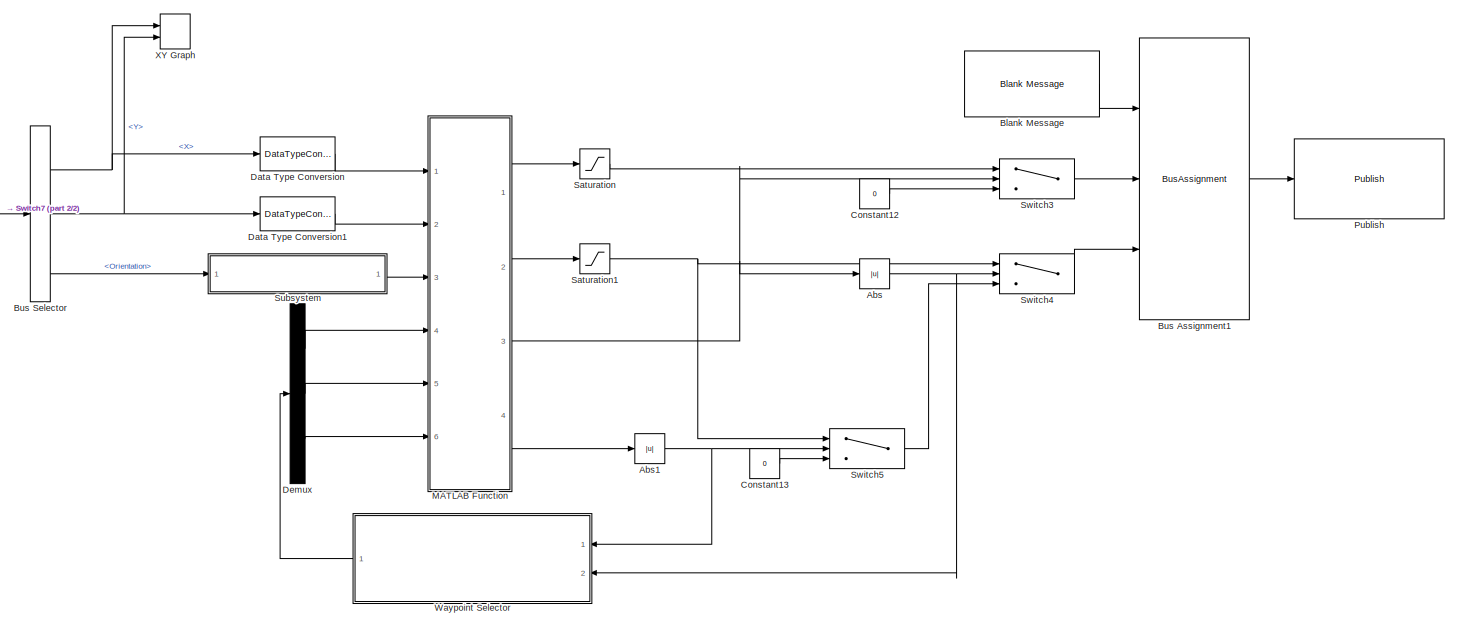
[diagram: root canvas - part 1/2, most of the canvas]
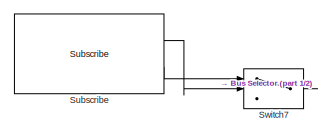
[diagram: root canvas - part 2/2, top left region]
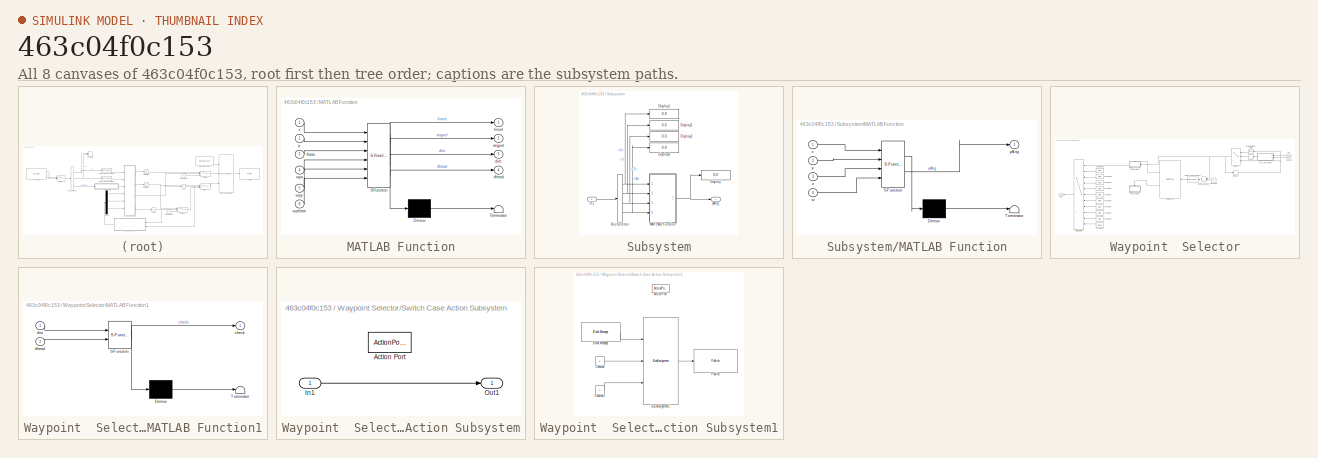
[diagram: thumbnail index - all 8 canvases of the model, root first then tree order]
MODEL slx_463c04f0c153
KIND model
CONFIG AbsTol = auto
CONFIG EnableMultiTasking = off
CONFIG FixedStep = 0.1
CONFIG MaxStep = auto
CONFIG MinStep = auto
CONFIG RelTol = 1e-3
CONFIG SampleTimeConstraint = Unconstrained
CONFIG SolverName = FixedStepAuto
CONFIG StartTime = 0.0
CONFIG StopTime = inf
BLOCK [Abs] Abs
  SaturateOnIntegerOverflow = off
BLOCK [Abs] Abs1
  SaturateOnIntegerOverflow = off
BLOCK [Reference] Blank Message  REF=robotlib/Blank Message
  Ports = [0, 1]
  SourceBlock = robotlib/Blank Message
  SourceProductBaseCode = RR
  SourceType = ROS Blank Message
BLOCK [BusAssignment] Bus Assignment1
  AssignedSignals = Linear.X,Angular.Z
  Ports = [3, 1]
BLOCK [BusSelector] Bus Selector
  OutputSignals = Pose.Pose.Position.X,Pose.Pose.Position.Y,Pose.Pose.Orientation
  Ports = [1, 3]
BLOCK [Constant] Constant12
  Value = 0
BLOCK [Constant] Constant13
  Value = 0
BLOCK [DataTypeConversion] Data Type Conversion
  OutDataTypeStr = double
  RndMeth = Floor
  SaturateOnIntegerOverflow = off
BLOCK [DataTypeConversion] Data Type Conversion1
  OutDataTypeStr = double
  RndMeth = Floor
  SaturateOnIntegerOverflow = off
BLOCK [Demux] Demux
  Outputs = 3
  Ports = [1, 3]
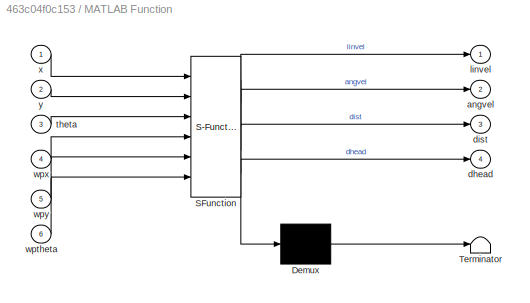
BLOCK [SubSystem] MATLAB Function
  ErrorFcn = Stateflow.Translate.translate
  PermitHierarchicalResolution = ExplicitOnly
  Ports = [6, 4]
  RequestExecContextInheritance = off
  SFBlockType = MATLAB Function
  TreatAsAtomicUnit = on
BLOCK [Demux] MATLAB Function/ Demux 
  Outputs = 1
  Ports = [1, 1]
BLOCK [S-Function] MATLAB Function/ SFunction 
  EnableBusSupport = on
  FunctionName = sf_sfun
  PortCounts = [6 5]
  Ports = [6, 5]
  SFcnIsStateOwnerBlock = off
  SFunctionDeploymentMode = off
  Tag = Stateflow S-Function 2
BLOCK [Terminator] MATLAB Function/ Terminator 
BLOCK [Outport] MATLAB Function/angvel
  Port = 2
BLOCK [Outport] MATLAB Function/dhead
  Port = 4
BLOCK [Outport] MATLAB Function/dist
  Port = 3
BLOCK [Outport] MATLAB Function/linvel
BLOCK [Inport] MATLAB Function/theta
  Port = 3
BLOCK [Inport] MATLAB Function/wptheta
  Port = 6
BLOCK [Inport] MATLAB Function/wpx
  Port = 4
BLOCK [Inport] MATLAB Function/wpy
  Port = 5
BLOCK [Inport] MATLAB Function/x
BLOCK [Inport] MATLAB Function/y
  Port = 2
BLOCK [Reference] Publish  REF=robotlib/Publish
  Ports = [1]
  SourceBlock = robotlib/Publish
  SourceProductBaseCode = RR
  SourceType = ROS Publish
BLOCK [Saturate] Saturation
  LowerLimit = -0.2
  UpperLimit = 0.2
BLOCK [Saturate] Saturation1
  LowerLimit = -0.4
  UpperLimit = 0.4
BLOCK [Reference] Subscribe  REF=robotlib/Subscribe
  Ports = [0, 2]
  SourceBlock = robotlib/Subscribe
  SourceProductBaseCode = RR
  SourceType = ROS Subscribe
BLOCK [SubSystem] Subsystem
  Ports = [1, 1]
  RequestExecContextInheritance = off
BLOCK [BusSelector] Subsystem/Bus Selector
  OutputSignals = X,Y,Z,W
  Ports = [1, 4]
BLOCK [Display] Subsystem/Display
  Decimation = 1
  Ports = [1]
BLOCK [Display] Subsystem/Display1
  Decimation = 1
  Ports = [1]
BLOCK [Display] Subsystem/Display2
  Decimation = 1
  Ports = [1]
BLOCK [Display] Subsystem/Display3
  Decimation = 1
  Ports = [1]
BLOCK [Display] Subsystem/Display4
  Decimation = 1
  Ports = [1]
BLOCK [Inport] Subsystem/In1
BLOCK [SubSystem] Subsystem/MATLAB Function
  ErrorFcn = Stateflow.Translate.translate
  PermitHierarchicalResolution = ExplicitOnly
  Ports = [4, 1]
  RequestExecContextInheritance = off
  SFBlockType = MATLAB Function
  TreatAsAtomicUnit = on
BLOCK [Demux] Subsystem/MATLAB Function/ Demux 
  Outputs = 1
  Ports = [1, 1]
BLOCK [S-Function] Subsystem/MATLAB Function/ SFunction 
  EnableBusSupport = on
  FunctionName = sf_sfun
  PortCounts = [4 2]
  Ports = [4, 2]
  SFcnIsStateOwnerBlock = off
  SFunctionDeploymentMode = off
  Tag = Stateflow S-Function 1
BLOCK [Terminator] Subsystem/MATLAB Function/ Terminator 
BLOCK [Inport] Subsystem/MATLAB Function/w
  Port = 4
BLOCK [Inport] Subsystem/MATLAB Function/x
BLOCK [Inport] Subsystem/MATLAB Function/y
  Port = 2
BLOCK [Outport] Subsystem/MATLAB Function/yAng
BLOCK [Inport] Subsystem/MATLAB Function/z
  Port = 3
BLOCK [Outport] Subsystem/yAng
BLOCK [Switch] Switch3
  Criteria = u2 > Threshold
  InputSameDT = off
  SaturateOnIntegerOverflow = off
  Threshold = 0.05
BLOCK [Switch] Switch4
  Criteria = u2 > Threshold
  InputSameDT = off
  SaturateOnIntegerOverflow = off
  Threshold = 0.05
BLOCK [Switch] Switch5
  Criteria = u2 > Threshold
  InputSameDT = off
  SaturateOnIntegerOverflow = off
  Threshold = 0.05
BLOCK [Switch] Switch7
  Criteria = u2 > Threshold
  InputSameDT = off
  SaturateOnIntegerOverflow = off
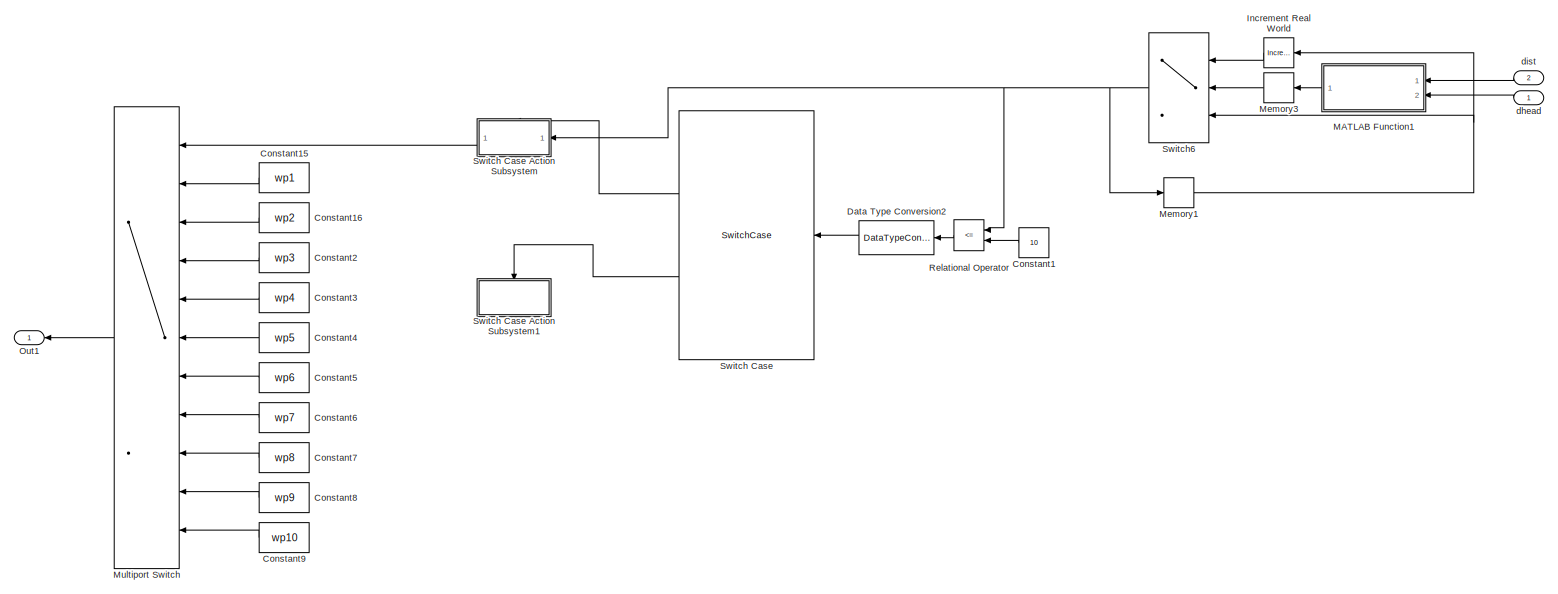
[diagram: Waypoint  Selector - part 1/1, most of the canvas]
BLOCK [SubSystem] Waypoint  Selector
  Ports = [2, 1]
  RequestExecContextInheritance = off
BLOCK [Constant] Waypoint  Selector/Constant1
  Value = 10
BLOCK [Constant] Waypoint  Selector/Constant15
  Value = wp1
BLOCK [Constant] Waypoint  Selector/Constant16
  Value = wp2
BLOCK [Constant] Waypoint  Selector/Constant2
  Value = wp3
BLOCK [Constant] Waypoint  Selector/Constant3
  Value = wp4
BLOCK [Constant] Waypoint  Selector/Constant4
  Value = wp5
BLOCK [Constant] Waypoint  Selector/Constant5
  Value = wp6
BLOCK [Constant] Waypoint  Selector/Constant6
  Value = wp7
BLOCK [Constant] Waypoint  Selector/Constant7
  Value = wp8
BLOCK [Constant] Waypoint  Selector/Constant8
  Value = wp9
BLOCK [Constant] Waypoint  Selector/Constant9
  Value = wp10
BLOCK [DataTypeConversion] Waypoint  Selector/Data Type Conversion2
  OutDataTypeStr = double
  RndMeth = Floor
  SaturateOnIntegerOverflow = off
BLOCK [Reference] Waypoint  Selector/Increment Real World  REF=simulink/Additional Math
& Discrete/Additional Math:
Increment - Decrement/Increment
Real World
  Ports = [1, 1]
  SourceBlock = simulink/Additional Math\n& Discrete/Additional Math:\nIncrement - Decrement/Increment\nReal World
  SourceProductBaseCode = SL
  SourceType = Real World Value Increment
BLOCK [SubSystem] Waypoint  Selector/MATLAB Function1
  ErrorFcn = Stateflow.Translate.translate
  PermitHierarchicalResolution = ExplicitOnly
  Ports = [2, 1]
  RequestExecContextInheritance = off
  SFBlockType = MATLAB Function
  TreatAsAtomicUnit = on
BLOCK [Demux] Waypoint  Selector/MATLAB Function1/ Demux 
  Outputs = 1
  Ports = [1, 1]
BLOCK [S-Function] Waypoint  Selector/MATLAB Function1/ SFunction 
  EnableBusSupport = on
  FunctionName = sf_sfun
  PortCounts = [2 2]
  Ports = [2, 2]
  SFcnIsStateOwnerBlock = off
  SFunctionDeploymentMode = off
  Tag = Stateflow S-Function 3
BLOCK [Terminator] Waypoint  Selector/MATLAB Function1/ Terminator 
BLOCK [Outport] Waypoint  Selector/MATLAB Function1/check
BLOCK [Inport] Waypoint  Selector/MATLAB Function1/dhead
  Port = 2
BLOCK [Inport] Waypoint  Selector/MATLAB Function1/dist
BLOCK [Memory] Waypoint  Selector/Memory1
  InitialCondition = 1
BLOCK [Memory] Waypoint  Selector/Memory3
BLOCK [MultiPortSwitch] Waypoint  Selector/Multiport Switch
  InputSameDT = off
  Inputs = 10
  Ports = [11, 1]
  SaturateOnIntegerOverflow = off
BLOCK [Outport] Waypoint  Selector/Out1
BLOCK [RelationalOperator] Waypoint  Selector/Relational Operator
  InputSameDT = off
  Operator = <=
  OutDataTypeStr = boolean
  Ports = [2, 1]
  RndMeth = Simplest
BLOCK [SwitchCase] Waypoint  Selector/Switch Case
  CaseConditions = {1,0}
  Ports = [1, 2]
  ShowDefaultCase = off
BLOCK [SubSystem] Waypoint  Selector/Switch Case Action Subsystem
  Ports = [1, 1, 0, 0, 0, 0, 0, 1]
  RequestExecContextInheritance = off
  TreatAsAtomicUnit = on
BLOCK [ActionPort] Waypoint  Selector/Switch Case Action Subsystem/Action Port
  ActionPortLabel = case [ 1 ]:
BLOCK [Inport] Waypoint  Selector/Switch Case Action Subsystem/In1
BLOCK [Outport] Waypoint  Selector/Switch Case Action Subsystem/Out1
BLOCK [SubSystem] Waypoint  Selector/Switch Case Action Subsystem1
  Ports = [0, 0, 0, 0, 0, 0, 0, 1]
  RequestExecContextInheritance = off
  TreatAsAtomicUnit = on
BLOCK [ActionPort] Waypoint  Selector/Switch Case Action Subsystem1/Action Port
  ActionPortLabel = case [ 0 ]:
BLOCK [Reference] Waypoint  Selector/Switch Case Action Subsystem1/Blank Message  REF=robotlib/Blank Message
  Ports = [0, 1]
  SourceBlock = robotlib/Blank Message
  SourceProductBaseCode = RR
  SourceType = ROS Blank Message
BLOCK [BusAssignment] Waypoint  Selector/Switch Case Action Subsystem1/Bus Assignment1
  AssignedSignals = Linear.X,Angular.Z
  Ports = [3, 1]
BLOCK [Constant] Waypoint  Selector/Switch Case Action Subsystem1/Constant
  Value = 0
BLOCK [Constant] Waypoint  Selector/Switch Case Action Subsystem1/Constant1
  Value = 0
BLOCK [Reference] Waypoint  Selector/Switch Case Action Subsystem1/Publish  REF=robotlib/Publish
  Ports = [1]
  SourceBlock = robotlib/Publish
  SourceProductBaseCode = RR
  SourceType = ROS Publish
BLOCK [Switch] Waypoint  Selector/Switch6
  Criteria = u2 > Threshold
  InputSameDT = off
  SaturateOnIntegerOverflow = off
BLOCK [Inport] Waypoint  Selector/dhead
BLOCK [Inport] Waypoint  Selector/dist 
  Port = 2
BLOCK [Record] XY Graph
  CompatibilityTag = XY
  FileSettingsInternal = {"entries":[{"content":{"excelSettings":{"content":{},"type":"Streamout.ExcelSettings"}},"type":"Streamout.FileSettingStorage","uuid":"65f3e3c0-3afb-4dd5-a4a8-66a70b6ab4f2"}],"packageUris":["http://schema.mathworks.com/mf0/streamout_blocks/R2020a"],"version":"1.0"}
  Layout = [1 1]
  Ports = [2]
  SignalsInternal = {"entries":[{"content":{"signals":[{"content":{"blockPath":["ass2Prov_Switchcase2021b/XY Graph"],"channel":[],"dimensions":[1],"domain":"ass2Prov_Switchcase2021b/XY Graph","lineColor":"#a2142f","plots":[1],"port":1,"sid":[],"signalID":9,"signalName":"<X>"},"type":"RecordBlkView.Signal","uuid":"1185a186-0d36-403c-a00f-c0733db3f458"},{"content":{"blockPath":["ass2Prov_Switchcase2021b/XY Graph"],"cha...<+410ch>
  VisualizationBindings = {"xyplotplugin":{"info":[{"series":[{"bindingParametersList":[{"parameter":"X-Axis","signalID":9,"signalName":"<X>"},{"parameter":"Y-Axis","signalID":12,"signalName":"<Y>"}],"seriesID":45595}],"subplotID":1}]}}
  st = -1
NET Abs1:1 -> Switch5:2, Waypoint  Selector:1
NET Abs:1 -> Switch4:2, Waypoint  Selector:2
LINE Blank Message:1 -> Bus Assignment1:1
LINE Bus Assignment1:1 -> Publish:1
NET Bus Selector:1 -> Data Type Conversion:1, XY Graph:1
NET Bus Selector:2 -> Data Type Conversion1:1, XY Graph:2
LINE Bus Selector:3 -> Subsystem:1
LINE Constant12:1 -> Switch3:3
LINE Constant13:1 -> Switch5:3
LINE Data Type Conversion1:1 -> MATLAB Function:2
LINE Data Type Conversion:1 -> MATLAB Function:1
LINE Demux:1 -> MATLAB Function:4
LINE Demux:2 -> MATLAB Function:5
LINE Demux:3 -> MATLAB Function:6
LINE MATLAB Function:1 -> Saturation:1
LINE MATLAB Function:2 -> Saturation1:1
NET MATLAB Function:3 -> Abs:1, Switch3:2
LINE MATLAB Function:4 -> Abs1:1
NET Saturation1:1 -> Switch4:1, Switch5:1
LINE Saturation:1 -> Switch3:1
LINE Subscribe:1 -> Switch7:2
LINE Subscribe:2 -> Switch7:1
NET Subsystem/Bus Selector:1 -> Subsystem/Display1:1, Subsystem/MATLAB Function:1
NET Subsystem/Bus Selector:2 -> Subsystem/Display2:1, Subsystem/MATLAB Function:2
NET Subsystem/Bus Selector:3 -> Subsystem/Display3:1, Subsystem/MATLAB Function:3
NET Subsystem/Bus Selector:4 -> Subsystem/Display4:1, Subsystem/MATLAB Function:4
LINE Subsystem/In1:1 -> Subsystem/Bus Selector:1
NET Subsystem/MATLAB Function:1 -> Subsystem/Display:1, Subsystem/yAng:1
LINE Subsystem:1 -> MATLAB Function:3
LINE Switch3:1 -> Bus Assignment1:2
LINE Switch4:1 -> Bus Assignment1:3
LINE Switch5:1 -> Switch4:3
LINE Switch7:1 -> Bus Selector:1
LINE Waypoint  Selector/Constant15:1 -> Waypoint  Selector/Multiport Switch:2
LINE Waypoint  Selector/Constant16:1 -> Waypoint  Selector/Multiport Switch:3
LINE Waypoint  Selector/Constant1:1 -> Waypoint  Selector/Relational Operator:2
LINE Waypoint  Selector/Constant2:1 -> Waypoint  Selector/Multiport Switch:4
LINE Waypoint  Selector/Constant3:1 -> Waypoint  Selector/Multiport Switch:5
LINE Waypoint  Selector/Constant4:1 -> Waypoint  Selector/Multiport Switch:6
LINE Waypoint  Selector/Constant5:1 -> Waypoint  Selector/Multiport Switch:7
LINE Waypoint  Selector/Constant6:1 -> Waypoint  Selector/Multiport Switch:8
LINE Waypoint  Selector/Constant7:1 -> Waypoint  Selector/Multiport Switch:9
LINE Waypoint  Selector/Constant8:1 -> Waypoint  Selector/Multiport Switch:10
LINE Waypoint  Selector/Constant9:1 -> Waypoint  Selector/Multiport Switch:11
LINE Waypoint  Selector/Data Type Conversion2:1 -> Waypoint  Selector/Switch Case:1
LINE Waypoint  Selector/Increment Real World:1 -> Waypoint  Selector/Switch6:1
LINE Waypoint  Selector/MATLAB Function1:1 -> Waypoint  Selector/Memory3:1
NET Waypoint  Selector/Memory1:1 -> Waypoint  Selector/Increment Real World:1, Waypoint  Selector/Switch6:3
LINE Waypoint  Selector/Memory3:1 -> Waypoint  Selector/Switch6:2
LINE Waypoint  Selector/Multiport Switch:1 -> Waypoint  Selector/Out1:1
LINE Waypoint  Selector/Relational Operator:1 -> Waypoint  Selector/Data Type Conversion2:1
LINE Waypoint  Selector/Switch Case Action Subsystem/In1:1 -> Waypoint  Selector/Switch Case Action Subsystem/Out1:1
LINE Waypoint  Selector/Switch Case Action Subsystem1/Blank Message:1 -> Waypoint  Selector/Switch Case Action Subsystem1/Bus Assignment1:1
LINE Waypoint  Selector/Switch Case Action Subsystem1/Bus Assignment1:1 -> Waypoint  Selector/Switch Case Action Subsystem1/Publish:1
LINE Waypoint  Selector/Switch Case Action Subsystem1/Constant1:1 -> Waypoint  Selector/Switch Case Action Subsystem1/Bus Assignment1:3
LINE Waypoint  Selector/Switch Case Action Subsystem1/Constant:1 -> Waypoint  Selector/Switch Case Action Subsystem1/Bus Assignment1:2
LINE Waypoint  Selector/Switch Case Action Subsystem:1 -> Waypoint  Selector/Multiport Switch:1
LINE Waypoint  Selector/Switch Case:1 -> Waypoint  Selector/Switch Case Action Subsystem:ifaction
LINE Waypoint  Selector/Switch Case:2 -> Waypoint  Selector/Switch Case Action Subsystem1:ifaction
NET Waypoint  Selector/Switch6:1 -> Waypoint  Selector/Memory1:1, Waypoint  Selector/Relational Operator:1, Waypoint  Selector/Switch Case Action Subsystem:1
LINE Waypoint  Selector/dhead:1 -> Waypoint  Selector/MATLAB Function1:2
LINE Waypoint  Selector/dist :1 -> Waypoint  Selector/MATLAB Function1:1
LINE Waypoint  Selector:1 -> Demux:1
note: NET lines group one-source signal fan-out (src -> all destinations, sorted); 1:1 wires keep LINE
CHART Subsystem/MATLAB Function states=1 transitions=1
  STATE_LABEL 'eML_blk_kernel()'
  STATE_LABEL 'SCRIPT:\nfunction yAng = conversAngle(x,y,z,w)\neulAngle = quat2eul([w,x,y,z]);\nyAng = eulAngle(1);\ncheck = isnan(yAng);\nif check == 1\n    yAng = 0;\nend\nend\n'
CHART MATLAB Function states=1 transitions=1
  STATE_LABEL 'eML_blk_kernel()'
  STATE_LABEL 'SCRIPT:\nfunction [linvel,angvel,dist,dhead] = fcn(x,y,theta,wpx,wpy,wptheta)\ndist    = sqrt((x - wpx)^2 + (y - wpy)^2);\ncourse  = atan2(wpy - y,wpx - x);\n\nif dist <= 0.05 \n    if theta < 0\n        wptheta = wptheta - 2*pi;\n    end\n    dhead0 = 0;\n    dhead = wptheta - theta;\nelse\n    dhead0 = course - theta;\n    if dhead0 < -pi\n        dhead = dhead0 + 2*pi;\n    elseif dhead0 > pi\n        dhead = ...<+139ch>'
CHART Waypoint  Selector/MATLAB Function1 states=1 transitions=1
  STATE_LABEL 'eML_blk_kernel()'
  STATE_LABEL 'SCRIPT:\nfunction check = checkfc(dist,dhead)\nif abs(dist) <= 0.05\n    if abs(dhead) <= 0.05\n        check = 1;\n    else\n        check = 0;\n    end\nelse\n    check = 0;\nend\nend\n'
CHART  states=0 transitions=0
CHART  states=0 transitions=0
CHART  states=0 transitions=0
